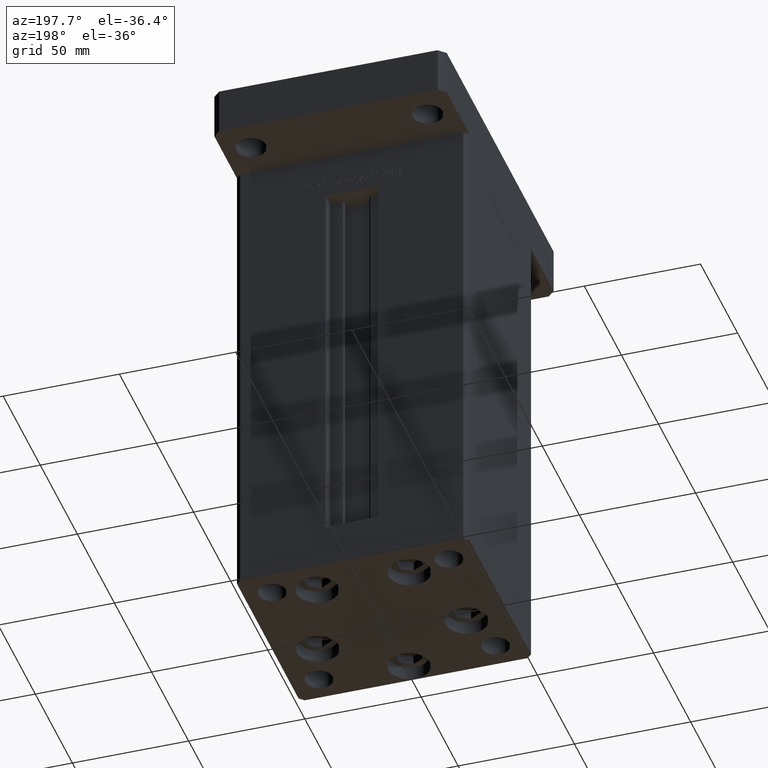
[diagram: clean part render]
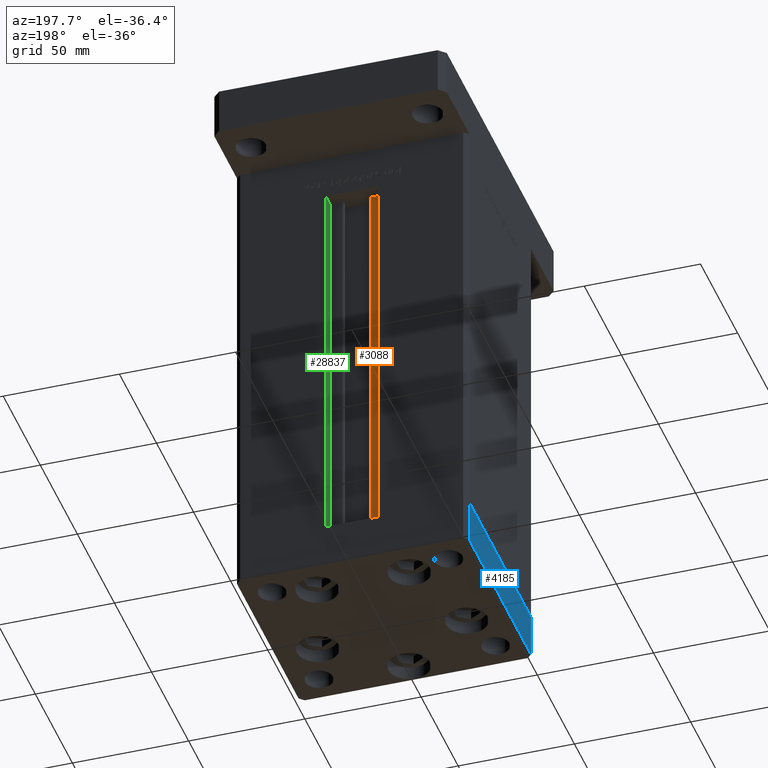
[diagram: same view with three faces highlighted in distinct colors, each labeled with its STEP entity id]
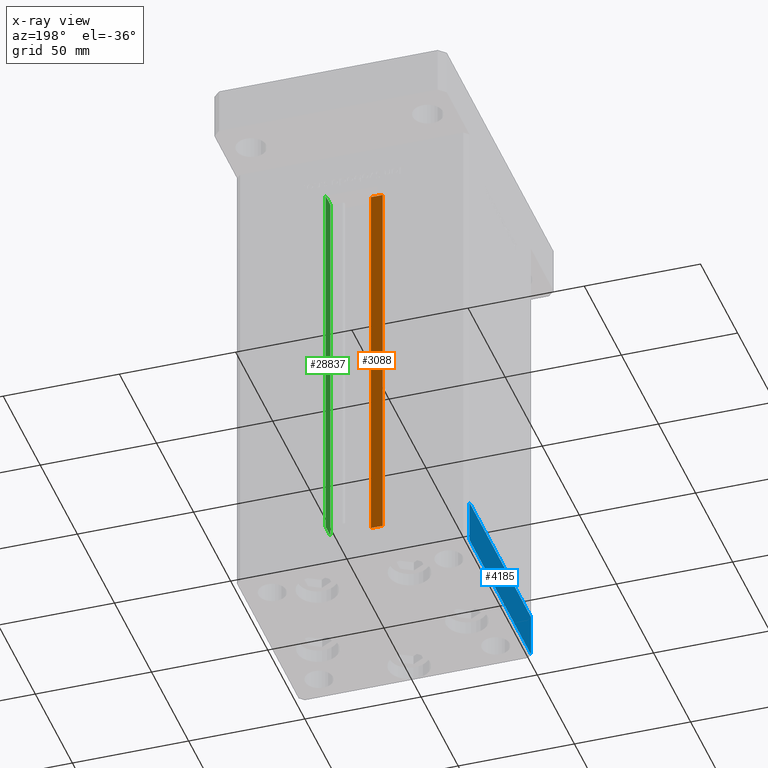
[diagram: x-ray of the same camera — body ghosted, the three highlighted faces saturated]
A machine part, auxiliary view with three faces highlighted in distinct colors.
The next image is the same camera in x-ray (body ghosted, the three faces saturated) — at least one of them is partly hidden behind the body in this view.
Their STEP definitions:

[orange] entity #3088 — the highlighted planar face has unit normal (0, -1, 0).
#852 = VERTEX_POINT ( 'NONE', #13730 ) ;
#3088 = ADVANCED_FACE ( 'NONE', ( #32608 ), #3174, .F. ) ;
#3174 = PLANE ( 'NONE',  #27438 ) ;
#5614 = ORIENTED_EDGE ( 'NONE', *, *, #13457, .F. ) ;
#6767 = VECTOR ( 'NONE', #31661, 1000.000000000000000 ) ;
#7117 = CARTESIAN_POINT ( 'NONE',  ( 0.000000000000000000, 36.99999999999999289, 168.5000000000000000 ) ) ;
#10969 = LINE ( 'NONE', #14518, #37089 ) ;
#11886 = DIRECTION ( 'NONE',  ( 0.000000000000000000, -1.000000000000000000, -0.000000000000000000 ) ) ;
#12373 = CARTESIAN_POINT ( 'NONE',  ( -11.24999999999999822, 36.99999999999999289, 0.000000000000000000 ) ) ;
#13457 = EDGE_CURVE ( 'NONE', #36370, #48542, #32194, .T. ) ;
#13730 = CARTESIAN_POINT ( 'NONE',  ( -11.24999999999999822, 36.99999999999999289, 0.000000000000000000 ) ) ;
#14506 = VECTOR ( 'NONE', #37781, 1000.000000000000000 ) ;
#14518 = CARTESIAN_POINT ( 'NONE',  ( -6.183333333333997928, 36.99999999999999289, 0.000000000000000000 ) ) ;
#15532 = ORIENTED_EDGE ( 'NONE', *, *, #47334, .T. ) ;
#16213 = VECTOR ( 'NONE', #49488, 1000.000000000000000 ) ;
#21892 = EDGE_LOOP ( 'NONE', ( #45307, #44362, #15532, #5614 ) ) ;
#27438 = AXIS2_PLACEMENT_3D ( 'NONE', #37255, #11886, #45171 ) ;
#31661 = DIRECTION ( 'NONE',  ( -1.000000000000000000, 0.000000000000000000, 0.000000000000000000 ) ) ;
#32194 = LINE ( 'NONE', #7117, #6767 ) ;
#32608 = FACE_OUTER_BOUND ( 'NONE', #21892, .T. ) ;
#36330 = DIRECTION ( 'NONE',  ( 1.000000000000000000, -0.000000000000000000, -0.000000000000000000 ) ) ;
#36370 = VERTEX_POINT ( 'NONE', #43222 ) ;
#37089 = VECTOR ( 'NONE', #36330, 1000.000000000000000 ) ;
#37255 = CARTESIAN_POINT ( 'NONE',  ( -6.183333333333997928, 36.99999999999999289, 0.000000000000000000 ) ) ;
#37745 = LINE ( 'NONE', #12373, #16213 ) ;
#37781 = DIRECTION ( 'NONE',  ( -0.000000000000000000, -0.000000000000000000, 1.000000000000000000 ) ) ;
#43222 = CARTESIAN_POINT ( 'NONE',  ( -6.183333333333997928, 36.99999999999999289, 168.5000000000000000 ) ) ;
#44362 = ORIENTED_EDGE ( 'NONE', *, *, #46697, .F. ) ;
#44684 = CARTESIAN_POINT ( 'NONE',  ( -6.183333333333997928, 36.99999999999999289, 0.000000000000000000 ) ) ;
#45093 = CARTESIAN_POINT ( 'NONE',  ( -11.24999999999999822, 36.99999999999999289, 168.5000000000000000 ) ) ;
#45171 = DIRECTION ( 'NONE',  ( 0.000000000000000000, 0.000000000000000000, -1.000000000000000000 ) ) ;
#45307 = ORIENTED_EDGE ( 'NONE', *, *, #48366, .F. ) ;
#46697 = EDGE_CURVE ( 'NONE', #852, #49040, #10969, .T. ) ;
#47334 = EDGE_CURVE ( 'NONE', #852, #48542, #37745, .T. ) ;
#47995 = CARTESIAN_POINT ( 'NONE',  ( -6.183333333333997928, 36.99999999999999289, 0.000000000000000000 ) ) ;
#48366 = EDGE_CURVE ( 'NONE', #49040, #36370, #50614, .T. ) ;
#48542 = VERTEX_POINT ( 'NONE', #45093 ) ;
#49040 = VERTEX_POINT ( 'NONE', #47995 ) ;
#49488 = DIRECTION ( 'NONE',  ( -0.000000000000000000, -0.000000000000000000, 1.000000000000000000 ) ) ;
#50614 = LINE ( 'NONE', #44684, #14506 ) ;

[blue] entity #4185 — the highlighted planar face has unit normal (-1, 0, 0).
#517 = VECTOR ( 'NONE', #23663, 1000.000000000000000 ) ;
#811 = PLANE ( 'NONE',  #48380 ) ;
#2119 = VERTEX_POINT ( 'NONE', #40794 ) ;
#3044 = VERTEX_POINT ( 'NONE', #48192 ) ;
#3873 = EDGE_CURVE ( 'NONE', #2119, #3044, #29775, .T. ) ;
#4185 = ADVANCED_FACE ( 'NONE', ( #33232 ), #811, .T. ) ;
#4340 = EDGE_CURVE ( 'NONE', #52632, #21156, #19548, .T. ) ;
#4408 = CARTESIAN_POINT ( 'NONE',  ( 50.00000000000000000, -41.49999999999999289, -19.00000000000000000 ) ) ;
#9238 = DIRECTION ( 'NONE',  ( -1.003213576468515193E-15, 1.000000000000000000, 0.000000000000000000 ) ) ;
#10433 = EDGE_CURVE ( 'NONE', #2119, #52632, #40367, .T. ) ;
#18667 = DIRECTION ( 'NONE',  ( -1.003213576468515193E-15, 1.000000000000000000, 0.000000000000000000 ) ) ;
#19548 = LINE ( 'NONE', #36196, #517 ) ;
#20737 = ORIENTED_EDGE ( 'NONE', *, *, #29268, .F. ) ;
#21156 = VERTEX_POINT ( 'NONE', #46964 ) ;
#23663 = DIRECTION ( 'NONE',  ( 0.000000000000000000, 0.000000000000000000, 1.000000000000000000 ) ) ;
#24282 = CARTESIAN_POINT ( 'NONE',  ( 50.00000000000000000, -41.49999999999999289, -19.00000000000000000 ) ) ;
#26529 = ORIENTED_EDGE ( 'NONE', *, *, #10433, .T. ) ;
#29268 = EDGE_CURVE ( 'NONE', #3044, #21156, #33730, .T. ) ;
#29708 = DIRECTION ( 'NONE',  ( 1.000000000000000000, 1.003213576468515193E-15, -0.000000000000000000 ) ) ;
#29775 = LINE ( 'NONE', #4408, #47523 ) ;
#32322 = VECTOR ( 'NONE', #18667, 1000.000000000000000 ) ;
#33232 = FACE_OUTER_BOUND ( 'NONE', #50682, .T. ) ;
#33582 = DIRECTION ( 'NONE',  ( 0.000000000000000000, 0.000000000000000000, 1.000000000000000000 ) ) ;
#33730 = LINE ( 'NONE', #50384, #32322 ) ;
#36196 = CARTESIAN_POINT ( 'NONE',  ( 49.99999999999992184, 41.49999999999998579, -19.00000000000000000 ) ) ;
#37321 = ORIENTED_EDGE ( 'NONE', *, *, #4340, .T. ) ;
#38469 = CARTESIAN_POINT ( 'NONE',  ( 49.99999999999992184, 41.49999999999998579, -19.00000000000000000 ) ) ;
#40367 = LINE ( 'NONE', #24282, #44964 ) ;
#40794 = CARTESIAN_POINT ( 'NONE',  ( 50.00000000000000000, -41.49999999999999289, -19.00000000000000000 ) ) ;
#44473 = DIRECTION ( 'NONE',  ( -1.003213576468515193E-15, 1.000000000000000000, 0.000000000000000000 ) ) ;
#44964 = VECTOR ( 'NONE', #44473, 1000.000000000000000 ) ;
#46607 = CARTESIAN_POINT ( 'NONE',  ( 50.00000000000000000, -41.49999999999999289, -19.00000000000000000 ) ) ;
#46964 = CARTESIAN_POINT ( 'NONE',  ( 49.99999999999992184, 41.49999999999998579, 0.000000000000000000 ) ) ;
#47523 = VECTOR ( 'NONE', #33582, 1000.000000000000000 ) ;
#48192 = CARTESIAN_POINT ( 'NONE',  ( 50.00000000000000000, -41.49999999999999289, 0.000000000000000000 ) ) ;
#48380 = AXIS2_PLACEMENT_3D ( 'NONE', #46607, #29708, #9238 ) ;
#48842 = ORIENTED_EDGE ( 'NONE', *, *, #3873, .F. ) ;
#50384 = CARTESIAN_POINT ( 'NONE',  ( 50.00000000000000000, -41.49999999999999289, 0.000000000000000000 ) ) ;
#50682 = EDGE_LOOP ( 'NONE', ( #20737, #48842, #26529, #37321 ) ) ;
#52632 = VERTEX_POINT ( 'NONE', #38469 ) ;

[green] entity #28837 — the highlighted planar face has unit normal (1, 0, 0).
#4311 = CARTESIAN_POINT ( 'NONE',  ( 11.24999999999999822, 36.99999999999999289, 0.000000000000000000 ) ) ;
#4332 = VERTEX_POINT ( 'NONE', #49756 ) ;
#4907 = VECTOR ( 'NONE', #25399, 1000.000000000000000 ) ;
#5764 = EDGE_CURVE ( 'NONE', #4332, #42905, #42569, .T. ) ;
#10400 = DIRECTION ( 'NONE',  ( 0.000000000000000000, 0.000000000000000000, -1.000000000000000000 ) ) ;
#11881 = ORIENTED_EDGE ( 'NONE', *, *, #22204, .T. ) ;
#12090 = EDGE_CURVE ( 'NONE', #30420, #17463, #20942, .T. ) ;
#13644 = ORIENTED_EDGE ( 'NONE', *, *, #12090, .F. ) ;
#17463 = VERTEX_POINT ( 'NONE', #44412 ) ;
#17974 = LINE ( 'NONE', #23146, #28772 ) ;
#20067 = DIRECTION ( 'NONE',  ( -0.000000000000000000, -0.000000000000000000, 1.000000000000000000 ) ) ;
#20942 = LINE ( 'NONE', #4311, #40684 ) ;
#22204 = EDGE_CURVE ( 'NONE', #30420, #42905, #17974, .T. ) ;
#23146 = CARTESIAN_POINT ( 'NONE',  ( 11.24999999999999822, 36.99999999999999289, 0.000000000000000000 ) ) ;
#24178 = CARTESIAN_POINT ( 'NONE',  ( 11.24999999999999822, 43.50000000000000000, 0.000000000000000000 ) ) ;
#25399 = DIRECTION ( 'NONE',  ( -0.000000000000000000, -1.000000000000000000, 0.000000000000000000 ) ) ;
#26702 = DIRECTION ( 'NONE',  ( -0.000000000000000000, -0.000000000000000000, 1.000000000000000000 ) ) ;
#28772 = VECTOR ( 'NONE', #26702, 1000.000000000000000 ) ;
#28837 = ADVANCED_FACE ( 'NONE', ( #35494 ), #47778, .F. ) ;
#29072 = LINE ( 'NONE', #24178, #39575 ) ;
#30420 = VERTEX_POINT ( 'NONE', #45654 ) ;
#35494 = FACE_OUTER_BOUND ( 'NONE', #41959, .T. ) ;
#37142 = EDGE_CURVE ( 'NONE', #17463, #4332, #29072, .T. ) ;
#38297 = ORIENTED_EDGE ( 'NONE', *, *, #5764, .F. ) ;
#38475 = CARTESIAN_POINT ( 'NONE',  ( 11.24999999999999822, 0.000000000000000000, 168.5000000000000000 ) ) ;
#38790 = DIRECTION ( 'NONE',  ( 1.000000000000000000, -0.000000000000000000, 0.000000000000000000 ) ) ;
#39575 = VECTOR ( 'NONE', #20067, 1000.000000000000000 ) ;
#39968 = CARTESIAN_POINT ( 'NONE',  ( 11.24999999999999822, 36.99999999999999289, 168.5000000000000000 ) ) ;
#40684 = VECTOR ( 'NONE', #49859, 1000.000000000000000 ) ;
#41959 = EDGE_LOOP ( 'NONE', ( #43700, #13644, #11881, #38297 ) ) ;
#42569 = LINE ( 'NONE', #38475, #4907 ) ;
#42905 = VERTEX_POINT ( 'NONE', #39968 ) ;
#43700 = ORIENTED_EDGE ( 'NONE', *, *, #37142, .F. ) ;
#44412 = CARTESIAN_POINT ( 'NONE',  ( 11.24999999999999822, 43.50000000000000000, 0.000000000000000000 ) ) ;
#45654 = CARTESIAN_POINT ( 'NONE',  ( 11.24999999999999822, 36.99999999999999289, 0.000000000000000000 ) ) ;
#47778 = PLANE ( 'NONE',  #48932 ) ;
#48932 = AXIS2_PLACEMENT_3D ( 'NONE', #51338, #38790, #10400 ) ;
#49756 = CARTESIAN_POINT ( 'NONE',  ( 11.24999999999999112, 43.50000000000000000, 168.5000000000000000 ) ) ;
#49859 = DIRECTION ( 'NONE',  ( 0.000000000000000000, 1.000000000000000000, 0.000000000000000000 ) ) ;
#51338 = CARTESIAN_POINT ( 'NONE',  ( 11.24999999999999822, 36.99999999999999289, 0.000000000000000000 ) ) ;